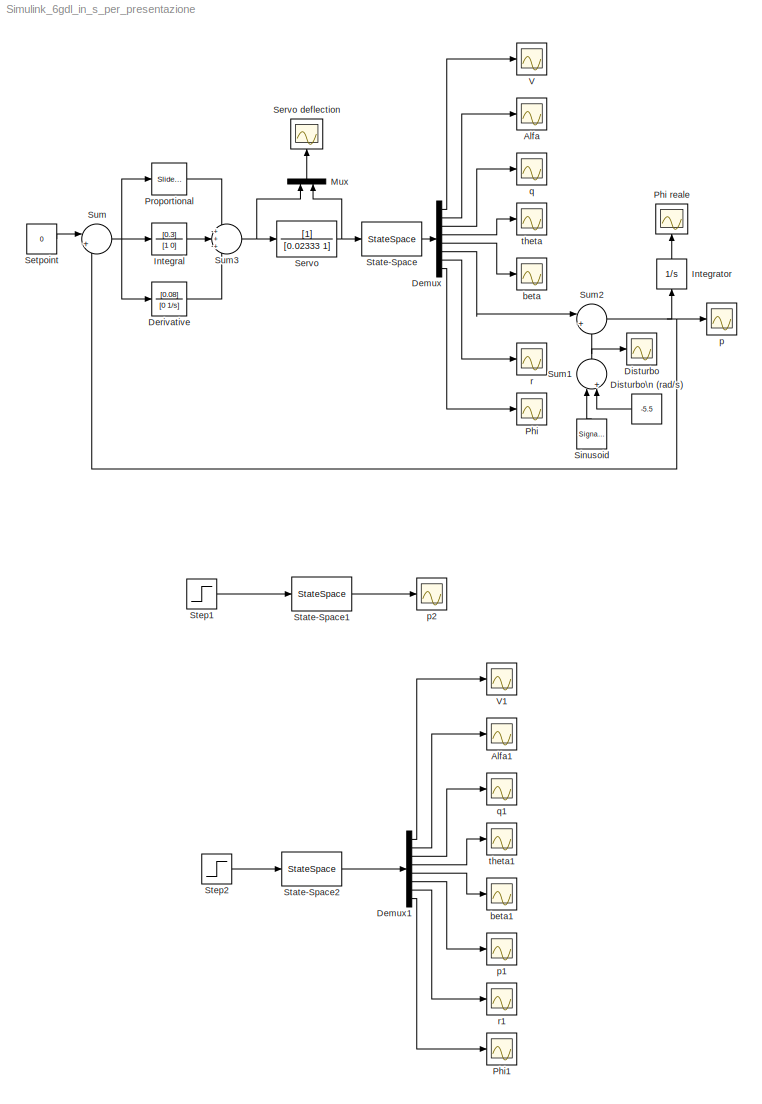
MODEL Simulink_6gdl_in_s_per_presentazione
KIND model
BLOCK [Scope] Alfa
  DataFormat = StructureWithTime
  Floating = off
  NumInputPorts = 1
  Ports = [1]
  SID = 9
  SampleTime = 0
  SaveName = ScopeData1
  ZoomMode = yonly
BLOCK [Scope] Alfa1
  DataFormat = StructureWithTime
  Floating = off
  NumInputPorts = 1
  Ports = [1]
  SID = 97
  SampleTime = 0
  SaveName = ScopeData12
  ZoomMode = yonly
BLOCK [Demux] Demux
  DisplayOption = bar
  Outputs = 8
  Ports = [1, 8]
  SID = 4
BLOCK [Demux] Demux1
  DisplayOption = bar
  Outputs = 8
  Ports = [1, 8]
  SID = 98
BLOCK [TransferFcn] Derivative
  Denominator = [0 1/s]
  Numerator = [0.08]
  SID = 122
BLOCK [Scope] Disturbo
  DataFormat = StructureWithTime
  Floating = off
  LimitDataPoints = off
  NumInputPorts = 1
  Ports = [1]
  SID = 65
  SampleTime = 0
  SaveName = ScopeData9
  TimeRange = 10
  YMax = -5
  YMin = -6
BLOCK [Constant] Disturbo\n (rad//s)
  SID = 55
  Value = -5.5
BLOCK [TransferFcn] Integral
  Denominator = [1 0]
  Numerator = [0.3]
  SID = 118
BLOCK [Integrator] Integrator
  Ports = [1, 1]
  SID = 77
BLOCK [Mux] Mux
  DisplayOption = bar
  Inputs = 2
  Ports = [2, 1]
  SID = 52
BLOCK [Scope] Phi
  DataFormat = StructureWithTime
  Floating = off
  NumInputPorts = 1
  Ports = [1]
  SID = 15
  SampleTime = 0
  SaveName = ScopeData7
  ZoomMode = xonly
BLOCK [Scope] Phi reale
  DataFormat = StructureWithTime
  Floating = off
  NumInputPorts = 1
  Ports = [1]
  SID = 78
  SampleTime = 0
  SaveName = ScopeData11
BLOCK [Scope] Phi1
  DataFormat = StructureWithTime
  Floating = off
  NumInputPorts = 1
  Ports = [1]
  SID = 104
  SampleTime = 0
  SaveName = ScopeData15
  ZoomMode = xonly
BLOCK [Reference] Proportional  REF=simulink/Math\nOperations/Slider\nGain
  Ports = [1, 1]
  SID = 121
  SourceBlock = simulink/Math\nOperations/Slider\nGain
  SourceType = Slider Gain
  gain = 0.07
  high = 2
  low = 0
BLOCK [TransferFcn] Servo
  Denominator = [0.02333 1]
  SID = 50
BLOCK [Scope] Servo deflection
  DataFormat = StructureWithTime
  Floating = off
  NumInputPorts = 1
  Ports = [1]
  SID = 76
  SampleTime = 0
  SaveName = ScopeData10
BLOCK [Constant] Setpoint
  SID = 64
  Value = 0
BLOCK [SignalGenerator] Sinusoid
  Amplitude = 0.1
  Frequency = 2
  Ports = [0, 1]
  SID = 58
BLOCK [StateSpace] State-Space
  A = Ad
  B = Bd
  C = C
  ContinuousStateAttributes = 'Variabili_di_stato'
  D = D
  SID = 1
  X0 = [0;0;0;0;0;0;0;0]
BLOCK [StateSpace] State-Space1
  A = (Clp/Ixap)*(2*Ve/diam)
  B = (Cldelta/Ixap)*(2*Ve/diam)^2
  ContinuousStateAttributes = 'Variabili_di_stato'
  D = 0
  SID = 28
BLOCK [StateSpace] State-Space2
  A = Ad
  B = Bd
  C = C
  ContinuousStateAttributes = 'Variabili_di_stato'
  D = D
  SID = 79
  X0 = [0;0;0;0;0;0;0;0]
BLOCK [Step] Step1
  After = 0.17
  SID = 30
  SampleTime = 0
BLOCK [Step] Step2
  After = 0.17
  SID = 114
  SampleTime = 0
BLOCK [Sum] Sum
  IconShape = round
  InputSameDT = off
  Inputs = |+-
  OutDataTypeStr = Inherit: Inherit via internal rule
  Ports = [2, 1]
  SID = 33
  SaturateOnIntegerOverflow = off
BLOCK [Sum] Sum1
  IconShape = round
  InputSameDT = off
  Inputs = |++
  OutDataTypeStr = Inherit: Inherit via internal rule
  Ports = [2, 1]
  SID = 60
  SaturateOnIntegerOverflow = off
BLOCK [Sum] Sum2
  IconShape = round
  InputSameDT = off
  Inputs = |++
  OutDataTypeStr = Inherit: Inherit via internal rule
  Ports = [2, 1]
  SID = 63
  SaturateOnIntegerOverflow = off
BLOCK [Sum] Sum3
  IconShape = round
  InputSameDT = off
  Inputs = +++
  OutDataTypeStr = Inherit: Inherit via internal rule
  Ports = [3, 1]
  SID = 123
  SaturateOnIntegerOverflow = off
BLOCK [Scope] V
  DataFormat = StructureWithTime
  Floating = off
  NumInputPorts = 1
  Ports = [1]
  SID = 2
  SampleTime = 0
  ZoomMode = xonly
BLOCK [Scope] V1
  DataFormat = StructureWithTime
  Floating = off
  NumInputPorts = 1
  Ports = [1]
  SID = 108
  SampleTime = 0
  SaveName = ScopeData16
  ZoomMode = xonly
BLOCK [Scope] beta
  DataFormat = StructureWithTime
  Floating = off
  NumInputPorts = 1
  Ports = [1]
  SID = 12
  SampleTime = 0
  SaveName = ScopeData4
  TimeRange = 50
  YMax = 0.06000000000000001
  YMin = -0.01
  ZoomMode = yonly
BLOCK [Scope] beta1
  DataFormat = StructureWithTime
  Floating = off
  NumInputPorts = 1
  Ports = [1]
  SID = 109
  SampleTime = 0
  SaveName = ScopeData17
  TimeRange = 50
  YMax = 0.06000000000000001
  YMin = -0.01
  ZoomMode = yonly
BLOCK [Scope] p
  DataFormat = StructureWithTime
  Floating = off
  NumInputPorts = 1
  Ports = [1]
  SID = 13
  SampleTime = 0
  SaveName = ScopeData5
BLOCK [Scope] p1
  DataFormat = StructureWithTime
  Floating = off
  NumInputPorts = 1
  Ports = [1]
  SID = 110
  SampleTime = 0
  SaveName = ScopeData18
BLOCK [Scope] p2
  DataFormat = StructureWithTime
  Floating = off
  NumInputPorts = 1
  Ports = [1]
  SID = 32
  SampleTime = 0
  SaveName = ScopeData8
BLOCK [Scope] q
  DataFormat = StructureWithTime
  Floating = off
  NumInputPorts = 1
  Ports = [1]
  SID = 10
  SampleTime = 0
  SaveName = ScopeData2
  TimeRange = 500
  YMax = 1
  YMin = -1
  ZoomMode = xonly
BLOCK [Scope] q1
  DataFormat = StructureWithTime
  Floating = off
  NumInputPorts = 1
  Ports = [1]
  SID = 111
  SampleTime = 0
  SaveName = ScopeData19
  TimeRange = 500
  YMax = 1
  YMin = -1
  ZoomMode = xonly
BLOCK [Scope] r
  DataFormat = StructureWithTime
  Floating = off
  NumInputPorts = 1
  Ports = [1]
  SID = 14
  SampleTime = 0
  SaveName = ScopeData6
  ZoomMode = xonly
BLOCK [Scope] r1
  DataFormat = StructureWithTime
  Floating = off
  NumInputPorts = 1
  Ports = [1]
  SID = 112
  SampleTime = 0
  SaveName = ScopeData20
  ZoomMode = xonly
BLOCK [Scope] theta
  DataFormat = StructureWithTime
  Floating = off
  NumInputPorts = 1
  Ports = [1]
  SID = 11
  SampleTime = 0
  SaveName = ScopeData3
  ZoomMode = xonly
BLOCK [Scope] theta1
  DataFormat = StructureWithTime
  Floating = off
  NumInputPorts = 1
  Ports = [1]
  SID = 113
  SampleTime = 0
  SaveName = ScopeData21
  ZoomMode = xonly
LINE Demux1:1 -> V1:1
LINE Demux1:2 -> Alfa1:1
LINE Demux1:3 -> q1:1
LINE Demux1:4 -> theta1:1
LINE Demux1:5 -> beta1:1
LINE Demux1:6 -> p1:1
LINE Demux1:7 -> r1:1
LINE Demux1:8 -> Phi1:1
LINE Demux:1 -> V:1
LINE Demux:2 -> Alfa:1
LINE Demux:3 -> q:1
LINE Demux:4 -> theta:1
LINE Demux:5 -> beta:1
LINE Demux:6 -> Sum2:1
LINE Demux:7 -> r:1
LINE Demux:8 -> Phi:1
LINE Derivative:1 -> Sum3:3
LINE Disturbo\n (rad//s):1 -> Sum1:2
LINE Integral:1 -> Sum3:2
LINE Integrator:1 -> Phi reale:1
LINE Mux:1 -> Servo deflection:1
LINE Proportional:1 -> Sum3:1
NET Servo:1 -> Mux:2, State-Space:1
LINE Setpoint:1 -> Sum:1
LINE Sinusoid:1 -> Sum1:1
LINE State-Space1:1 -> p2:1
LINE State-Space2:1 -> Demux1:1
LINE State-Space:1 -> Demux:1
LINE Step1:1 -> State-Space1:1
LINE Step2:1 -> State-Space2:1
NET Sum1:1 -> Disturbo:1, Sum2:2
NET Sum2:1 -> Integrator:1, Sum:2, p:1
NET Sum3:1 -> Mux:1, Servo:1
NET Sum:1 -> Derivative:1, Integral:1, Proportional:1
note: NET lines group one-source signal fan-out (src -> all destinations, sorted); 1:1 wires keep LINE
